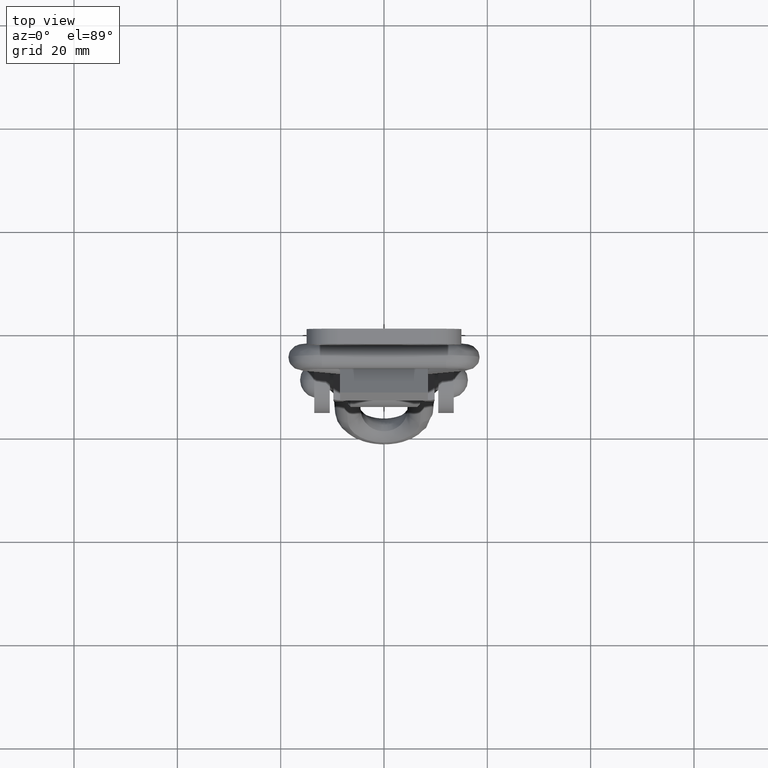
[diagram: clean part render]
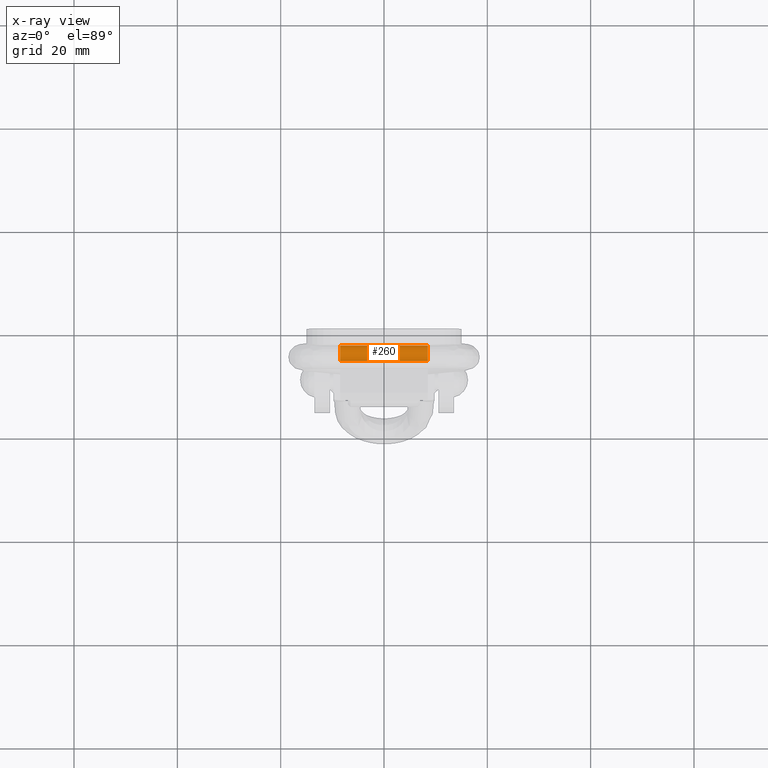
[diagram: x-ray — body ghosted, one internal face saturated and labeled with its STEP entity id]
A machine part, top view, then the same camera in x-ray: the body is ghosted and one INTERNAL B-rep face — a face not visible from any outside direction — is saturated and labeled: STEP entity #260.
In plain terms, the highlighted cylindrical surface (edge-blend (fillet) strip) has radius 2 mm, axis along (1, 0, 0).
Its self-contained STEP definition (entity closure, byte-faithful):
#260=ADVANCED_FACE('',(#483),#482,.F.);
#482=CYLINDRICAL_SURFACE('',#2738,2.00000000000E+00);
#483=FACE_OUTER_BOUND('',#2739,.T.);
#2735=CARTESIAN_POINT('',(9.91500000000E+02,-2.00000000000E+00,-1.10000000000E+01));
#2736=DIRECTION('',(1.00000000000E+00,-0.00000000000E+00,-0.00000000000E+00));
#2737=DIRECTION('',(0.00000000000E+00,-4.92423560103E-01,8.70355695940E-01));
#2738=AXIS2_PLACEMENT_3D('',#2735,#2736,#2737);
#2739=EDGE_LOOP('',(#4540,#4541,#4542,#4543));
#4540=ORIENTED_EDGE('',*,*,#5612,.T.);
#4541=ORIENTED_EDGE('',*,*,#5613,.F.);
#4542=ORIENTED_EDGE('',*,*,#5614,.F.);
#4543=ORIENTED_EDGE('',*,*,#5615,.T.);
#5612=EDGE_CURVE('',#6148,#6149,#6150,.T.);
#5613=EDGE_CURVE('',#6156,#6149,#6157,.T.);
#5614=EDGE_CURVE('',#6163,#6156,#6164,.T.);
#5615=EDGE_CURVE('',#6163,#6148,#6170,.T.);
#6148=VERTEX_POINT('',#9701);
#6149=VERTEX_POINT('',#9702);
#6150=CIRCLE('',#9706,2.00000000000E+00);
#6156=VERTEX_POINT('',#9707);
#6157=LINE('',#9708,#9709);
#6163=VERTEX_POINT('',#9711);
#6164=CIRCLE('',#9715,2.00000000000E+00);
#6170=LINE('',#9716,#9717);
#9701=CARTESIAN_POINT('',(-8.50000000000E+00,0.00000000000E+00,-1.10000000000E+01));
#9702=CARTESIAN_POINT('',(-8.50000000000E+00,-3.02324011772E+00,-1.27184235978E+01));
#9703=CARTESIAN_POINT('',(-8.50000000000E+00,-2.00000000000E+00,-1.10000000000E+01));
#9704=DIRECTION('',(-1.00000000000E+00,-0.00000000000E+00,-0.00000000000E+00));
#9705=DIRECTION('',(-0.00000000000E+00,-0.00000000000E+00,1.00000000000E+00));
#9706=AXIS2_PLACEMENT_3D('',#9703,#9704,#9705);
#9707=CARTESIAN_POINT('',(8.50000000000E+00,-3.02324011772E+00,-1.27184235978E+01));
#9708=CARTESIAN_POINT('',(8.50000000000E+00,-3.02324011772E+00,-1.27184235978E+01));
#9709=VECTOR('',#9710,1.70000000000E+01);
#9710=DIRECTION('',(-1.00000000000E+00,0.00000000000E+00,0.00000000000E+00));
#9711=CARTESIAN_POINT('',(8.50000000000E+00,0.00000000000E+00,-1.10000000000E+01));
#9712=CARTESIAN_POINT('',(8.50000000000E+00,-2.00000000000E+00,-1.10000000000E+01));
#9713=DIRECTION('',(-1.00000000000E+00,-0.00000000000E+00,-0.00000000000E+00));
#9714=DIRECTION('',(-0.00000000000E+00,-0.00000000000E+00,1.00000000000E+00));
#9715=AXIS2_PLACEMENT_3D('',#9712,#9713,#9714);
#9716=CARTESIAN_POINT('',(8.50000000000E+00,0.00000000000E+00,-1.10000000000E+01));
#9717=VECTOR('',#9718,1.70000000000E+01);
#9718=DIRECTION('',(-1.00000000000E+00,0.00000000000E+00,0.00000000000E+00));